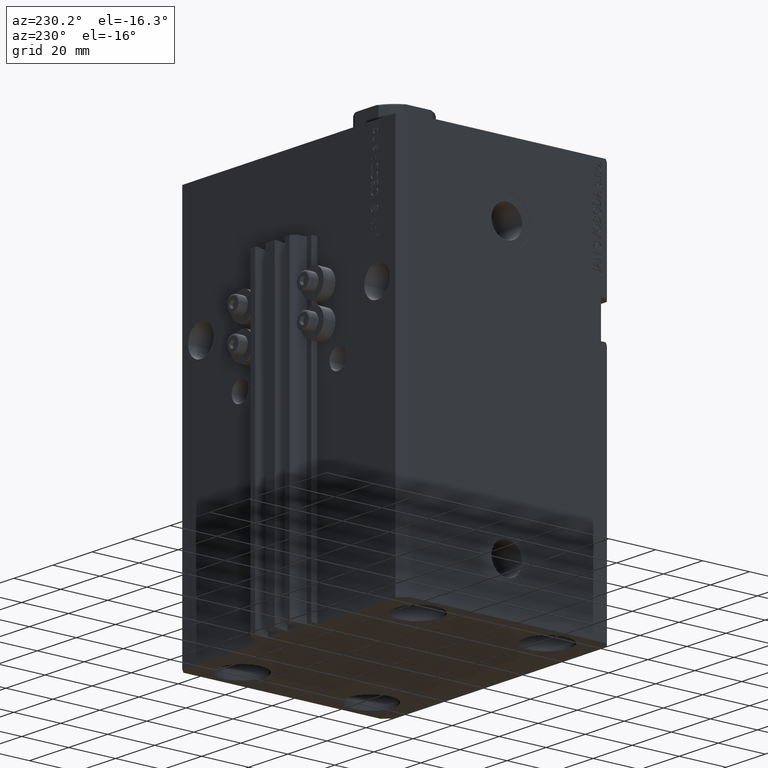
[diagram: clean part render]
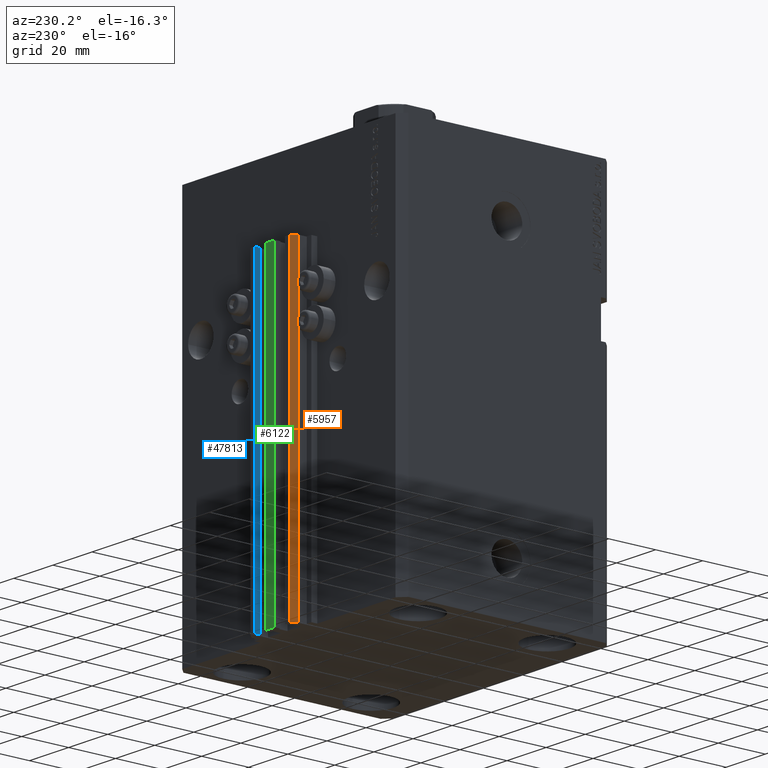
[diagram: same view with three faces highlighted in distinct colors, each labeled with its STEP entity id]
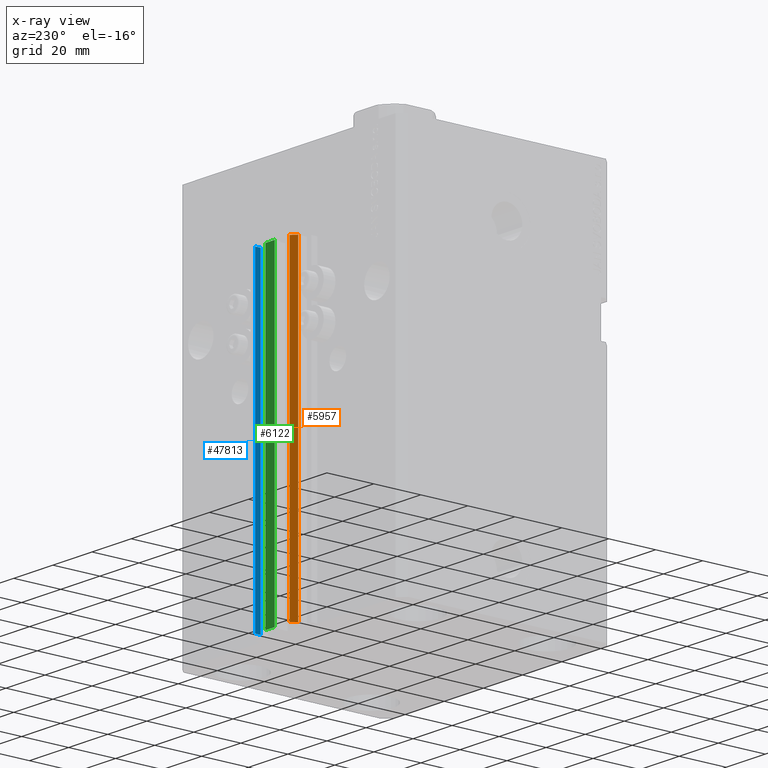
[diagram: x-ray of the same camera — body ghosted, the three highlighted faces saturated]
A machine part, auxiliary view with three faces highlighted in distinct colors.
The next image is the same camera in x-ray (body ghosted, the three faces saturated) — at least one of them is partly hidden behind the body in this view.
Their STEP definitions:

[orange] entity #5957 — the highlighted planar face has unit normal (-0.7071, 0.7071, 0).
#971 = ORIENTED_EDGE ( 'NONE', *, *, #5098, .T. ) ;
#2836 = VERTEX_POINT ( 'NONE', #18618 ) ;
#3072 = LINE ( 'NONE', #3576, #40901 ) ;
#3576 = CARTESIAN_POINT ( 'NONE',  ( -10.00000000000000000, 52.99999999999999289, -33.00000000000000000 ) ) ;
#5070 = CARTESIAN_POINT ( 'NONE',  ( -10.00000000000000000, 52.99999999999999289, -165.0000000000000000 ) ) ;
#5098 = EDGE_CURVE ( 'NONE', #6299, #25073, #42756, .T. ) ;
#5957 = ADVANCED_FACE ( 'NONE', ( #8293 ), #35186, .T. ) ;
#6299 = VERTEX_POINT ( 'NONE', #20796 ) ;
#7610 = DIRECTION ( 'NONE',  ( -0.7071067811865472397, -0.7071067811865479058, 0.000000000000000000 ) ) ;
#7990 = EDGE_CURVE ( 'NONE', #2836, #6299, #34188, .T. ) ;
#8293 = FACE_OUTER_BOUND ( 'NONE', #25537, .T. ) ;
#10673 = ORIENTED_EDGE ( 'NONE', *, *, #7990, .T. ) ;
#14417 = AXIS2_PLACEMENT_3D ( 'NONE', #38227, #19102, #31176 ) ;
#15589 = ORIENTED_EDGE ( 'NONE', *, *, #29752, .F. ) ;
#17814 = CARTESIAN_POINT ( 'NONE',  ( -12.00000000000000000, 50.99999999999999289, -33.00000000000000000 ) ) ;
#18338 = CARTESIAN_POINT ( 'NONE',  ( -10.00000000000000000, 52.99999999999999289, -165.0000000000000000 ) ) ;
#18618 = CARTESIAN_POINT ( 'NONE',  ( -10.00000000000000000, 52.99999999999999289, -165.0000000000000000 ) ) ;
#19102 = DIRECTION ( 'NONE',  ( -0.7071067811865479058, 0.7071067811865472397, 0.000000000000000000 ) ) ;
#20796 = CARTESIAN_POINT ( 'NONE',  ( -12.00000000000000000, 50.99999999999999289, -165.0000000000000000 ) ) ;
#25073 = VERTEX_POINT ( 'NONE', #17814 ) ;
#25537 = EDGE_LOOP ( 'NONE', ( #15589, #49620, #10673, #971 ) ) ;
#29752 = EDGE_CURVE ( 'NONE', #44957, #25073, #3072, .T. ) ;
#29870 = EDGE_CURVE ( 'NONE', #2836, #44957, #42548, .T. ) ;
#31176 = DIRECTION ( 'NONE',  ( -0.7071067811865472397, -0.7071067811865479058, 0.000000000000000000 ) ) ;
#32182 = VECTOR ( 'NONE', #45749, 999.9999999999998863 ) ;
#34188 = LINE ( 'NONE', #18338, #32182 ) ;
#35186 = PLANE ( 'NONE',  #14417 ) ;
#35713 = CARTESIAN_POINT ( 'NONE',  ( -12.00000000000000000, 50.99999999999999289, -165.0000000000000000 ) ) ;
#36885 = VECTOR ( 'NONE', #47076, 1000.000000000000000 ) ;
#38117 = CARTESIAN_POINT ( 'NONE',  ( -10.00000000000000000, 52.99999999999999289, -33.00000000000000000 ) ) ;
#38227 = CARTESIAN_POINT ( 'NONE',  ( -10.00000000000000000, 52.99999999999999289, -165.0000000000000000 ) ) ;
#40901 = VECTOR ( 'NONE', #7610, 999.9999999999998863 ) ;
#41722 = VECTOR ( 'NONE', #46273, 1000.000000000000000 ) ;
#42548 = LINE ( 'NONE', #5070, #36885 ) ;
#42756 = LINE ( 'NONE', #35713, #41722 ) ;
#44957 = VERTEX_POINT ( 'NONE', #38117 ) ;
#45749 = DIRECTION ( 'NONE',  ( -0.7071067811865472397, -0.7071067811865479058, 0.000000000000000000 ) ) ;
#46273 = DIRECTION ( 'NONE',  ( 0.000000000000000000, 0.000000000000000000, 1.000000000000000000 ) ) ;
#47076 = DIRECTION ( 'NONE',  ( 0.000000000000000000, 0.000000000000000000, 1.000000000000000000 ) ) ;
#49620 = ORIENTED_EDGE ( 'NONE', *, *, #29870, .F. ) ;

[blue] entity #47813 — the highlighted planar face has unit normal (-1, 0, 0).
#1612 = PLANE ( 'NONE',  #25833 ) ;
#2480 = CARTESIAN_POINT ( 'NONE',  ( 7.649999999999998579, 53.00000000000000711, -33.00000000000000000 ) ) ;
#6389 = LINE ( 'NONE', #33058, #6487 ) ;
#6487 = VECTOR ( 'NONE', #21477, 1000.000000000000000 ) ;
#6828 = CARTESIAN_POINT ( 'NONE',  ( 7.649999999999998579, 50.60000000000000853, -33.00000000000000000 ) ) ;
#7915 = ORIENTED_EDGE ( 'NONE', *, *, #22515, .T. ) ;
#8750 = CARTESIAN_POINT ( 'NONE',  ( 7.649999999999998579, 53.00000000000000711, -165.0000000000000000 ) ) ;
#9874 = VERTEX_POINT ( 'NONE', #28212 ) ;
#10279 = LINE ( 'NONE', #2480, #25939 ) ;
#10652 = DIRECTION ( 'NONE',  ( 0.000000000000000000, -1.000000000000000000, 0.000000000000000000 ) ) ;
#12009 = EDGE_CURVE ( 'NONE', #12400, #24182, #6389, .T. ) ;
#12117 = ORIENTED_EDGE ( 'NONE', *, *, #12009, .F. ) ;
#12400 = VERTEX_POINT ( 'NONE', #8750 ) ;
#12930 = FACE_OUTER_BOUND ( 'NONE', #23902, .T. ) ;
#13013 = VECTOR ( 'NONE', #10652, 1000.000000000000000 ) ;
#13186 = DIRECTION ( 'NONE',  ( 0.000000000000000000, 0.000000000000000000, 1.000000000000000000 ) ) ;
#13421 = CARTESIAN_POINT ( 'NONE',  ( 7.649999999999998579, 53.00000000000000711, -165.0000000000000000 ) ) ;
#16954 = DIRECTION ( 'NONE',  ( -1.000000000000000000, 0.000000000000000000, 0.000000000000000000 ) ) ;
#18454 = CARTESIAN_POINT ( 'NONE',  ( 7.649999999999998579, 50.60000000000000853, -165.0000000000000000 ) ) ;
#18906 = ORIENTED_EDGE ( 'NONE', *, *, #47960, .T. ) ;
#21477 = DIRECTION ( 'NONE',  ( 0.000000000000000000, 0.000000000000000000, 1.000000000000000000 ) ) ;
#22456 = LINE ( 'NONE', #45354, #13013 ) ;
#22515 = EDGE_CURVE ( 'NONE', #9874, #41358, #33301, .T. ) ;
#23902 = EDGE_LOOP ( 'NONE', ( #42639, #12117, #18906, #7915 ) ) ;
#24182 = VERTEX_POINT ( 'NONE', #33375 ) ;
#25833 = AXIS2_PLACEMENT_3D ( 'NONE', #13421, #16954, #13186 ) ;
#25939 = VECTOR ( 'NONE', #30177, 1000.000000000000000 ) ;
#28212 = CARTESIAN_POINT ( 'NONE',  ( 7.649999999999998579, 50.60000000000000853, -165.0000000000000000 ) ) ;
#30177 = DIRECTION ( 'NONE',  ( 0.000000000000000000, -1.000000000000000000, 0.000000000000000000 ) ) ;
#31042 = VECTOR ( 'NONE', #37323, 1000.000000000000000 ) ;
#33058 = CARTESIAN_POINT ( 'NONE',  ( 7.649999999999998579, 53.00000000000000711, -165.0000000000000000 ) ) ;
#33301 = LINE ( 'NONE', #18454, #31042 ) ;
#33375 = CARTESIAN_POINT ( 'NONE',  ( 7.649999999999998579, 53.00000000000000711, -33.00000000000000000 ) ) ;
#37323 = DIRECTION ( 'NONE',  ( 0.000000000000000000, 0.000000000000000000, 1.000000000000000000 ) ) ;
#41358 = VERTEX_POINT ( 'NONE', #6828 ) ;
#41646 = EDGE_CURVE ( 'NONE', #24182, #41358, #10279, .T. ) ;
#42639 = ORIENTED_EDGE ( 'NONE', *, *, #41646, .F. ) ;
#45354 = CARTESIAN_POINT ( 'NONE',  ( 7.649999999999998579, 53.00000000000000711, -165.0000000000000000 ) ) ;
#47813 = ADVANCED_FACE ( 'NONE', ( #12930 ), #1612, .T. ) ;
#47960 = EDGE_CURVE ( 'NONE', #12400, #9874, #22456, .T. ) ;

[green] entity #6122 — the highlighted planar face has unit normal (0, -1, 0).
#867 = CARTESIAN_POINT ( 'NONE',  ( -2.350000000000003642, 53.00000000000000000, -165.0000000000000000 ) ) ;
#1613 = AXIS2_PLACEMENT_3D ( 'NONE', #25355, #40693, #36926 ) ;
#1889 = ORIENTED_EDGE ( 'NONE', *, *, #22277, .T. ) ;
#2069 = EDGE_CURVE ( 'NONE', #34444, #47103, #5532, .T. ) ;
#5464 = ORIENTED_EDGE ( 'NONE', *, *, #34547, .F. ) ;
#5532 = LINE ( 'NONE', #9798, #7036 ) ;
#5643 = LINE ( 'NONE', #32332, #39326 ) ;
#6122 = ADVANCED_FACE ( 'NONE', ( #30146 ), #41451, .F. ) ;
#6522 = VERTEX_POINT ( 'NONE', #27967 ) ;
#7036 = VECTOR ( 'NONE', #44011, 1000.000000000000000 ) ;
#9798 = CARTESIAN_POINT ( 'NONE',  ( -2.350000000000003642, 53.00000000000000000, -165.0000000000000000 ) ) ;
#12640 = LINE ( 'NONE', #27501, #31842 ) ;
#14911 = LINE ( 'NONE', #41578, #33879 ) ;
#17722 = ORIENTED_EDGE ( 'NONE', *, *, #47911, .F. ) ;
#21711 = DIRECTION ( 'NONE',  ( 0.000000000000000000, 0.000000000000000000, 1.000000000000000000 ) ) ;
#22277 = EDGE_CURVE ( 'NONE', #47103, #33608, #12640, .T. ) ;
#25355 = CARTESIAN_POINT ( 'NONE',  ( -2.350000000000003642, 53.00000000000000000, -165.0000000000000000 ) ) ;
#26547 = CARTESIAN_POINT ( 'NONE',  ( 2.349999999999999645, 53.00000000000000000, -33.00000000000000000 ) ) ;
#27501 = CARTESIAN_POINT ( 'NONE',  ( -2.350000000000003642, 53.00000000000000000, -33.00000000000000000 ) ) ;
#27967 = CARTESIAN_POINT ( 'NONE',  ( 2.349999999999999645, 53.00000000000000000, -165.0000000000000000 ) ) ;
#30146 = FACE_OUTER_BOUND ( 'NONE', #30726, .T. ) ;
#30726 = EDGE_LOOP ( 'NONE', ( #1889, #17722, #5464, #41632 ) ) ;
#31842 = VECTOR ( 'NONE', #35540, 1000.000000000000000 ) ;
#32332 = CARTESIAN_POINT ( 'NONE',  ( -2.350000000000003642, 53.00000000000000000, -165.0000000000000000 ) ) ;
#33608 = VERTEX_POINT ( 'NONE', #26547 ) ;
#33879 = VECTOR ( 'NONE', #21711, 1000.000000000000000 ) ;
#34444 = VERTEX_POINT ( 'NONE', #867 ) ;
#34547 = EDGE_CURVE ( 'NONE', #34444, #6522, #5643, .T. ) ;
#35540 = DIRECTION ( 'NONE',  ( 1.000000000000000000, 0.000000000000000000, 0.000000000000000000 ) ) ;
#36250 = CARTESIAN_POINT ( 'NONE',  ( -2.350000000000003642, 53.00000000000000000, -33.00000000000000000 ) ) ;
#36820 = DIRECTION ( 'NONE',  ( 1.000000000000000000, 0.000000000000000000, 0.000000000000000000 ) ) ;
#36926 = DIRECTION ( 'NONE',  ( 0.000000000000000000, -0.000000000000000000, -1.000000000000000000 ) ) ;
#39326 = VECTOR ( 'NONE', #36820, 1000.000000000000000 ) ;
#40693 = DIRECTION ( 'NONE',  ( 0.000000000000000000, -1.000000000000000000, 0.000000000000000000 ) ) ;
#41451 = PLANE ( 'NONE',  #1613 ) ;
#41578 = CARTESIAN_POINT ( 'NONE',  ( 2.349999999999999645, 53.00000000000000000, -165.0000000000000000 ) ) ;
#41632 = ORIENTED_EDGE ( 'NONE', *, *, #2069, .T. ) ;
#44011 = DIRECTION ( 'NONE',  ( 0.000000000000000000, 0.000000000000000000, 1.000000000000000000 ) ) ;
#47103 = VERTEX_POINT ( 'NONE', #36250 ) ;
#47911 = EDGE_CURVE ( 'NONE', #6522, #33608, #14911, .T. ) ;